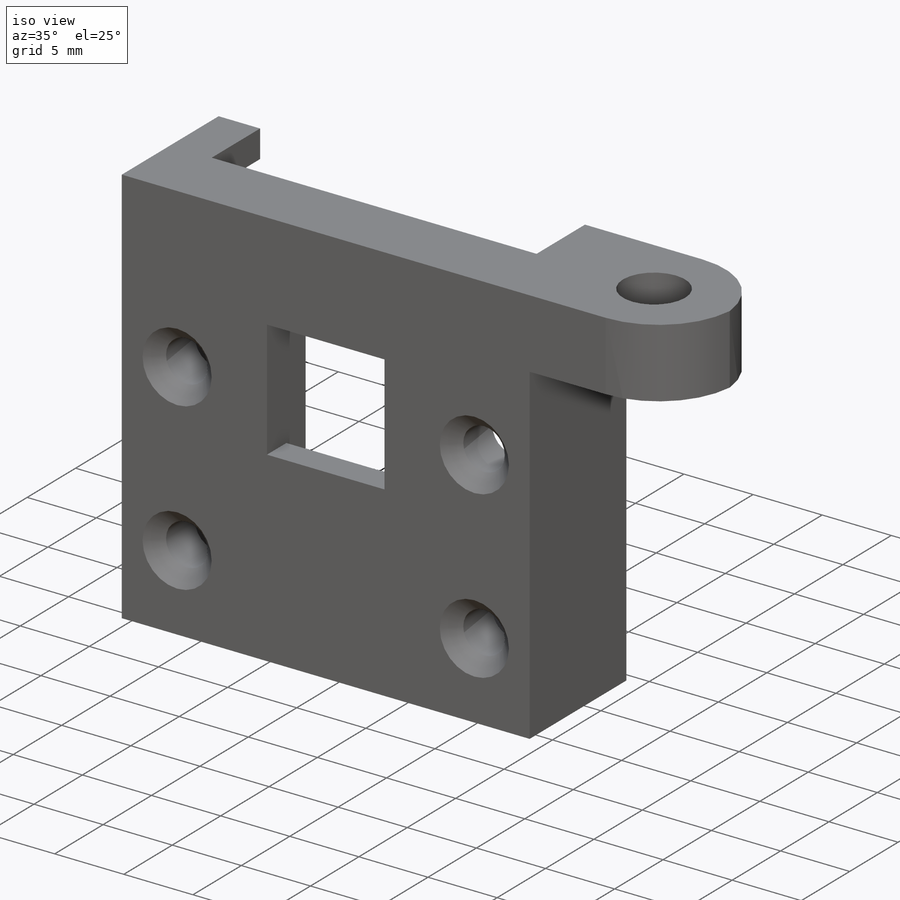
[diagram: iso view]
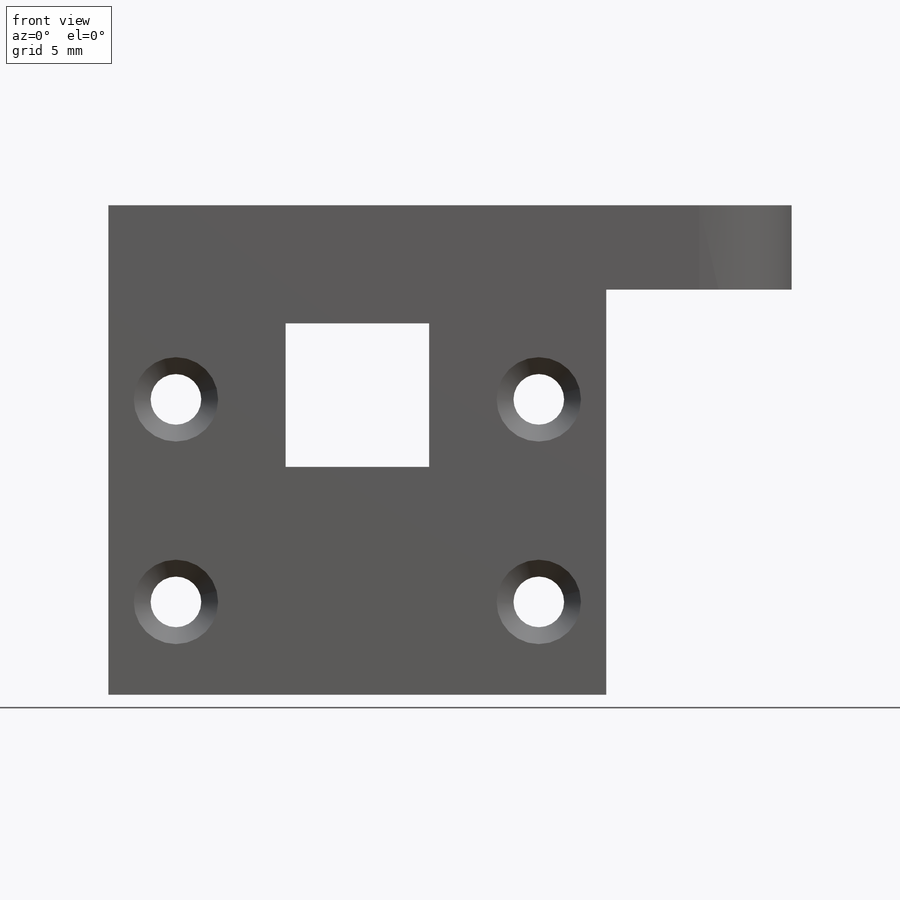
[diagram: front view]
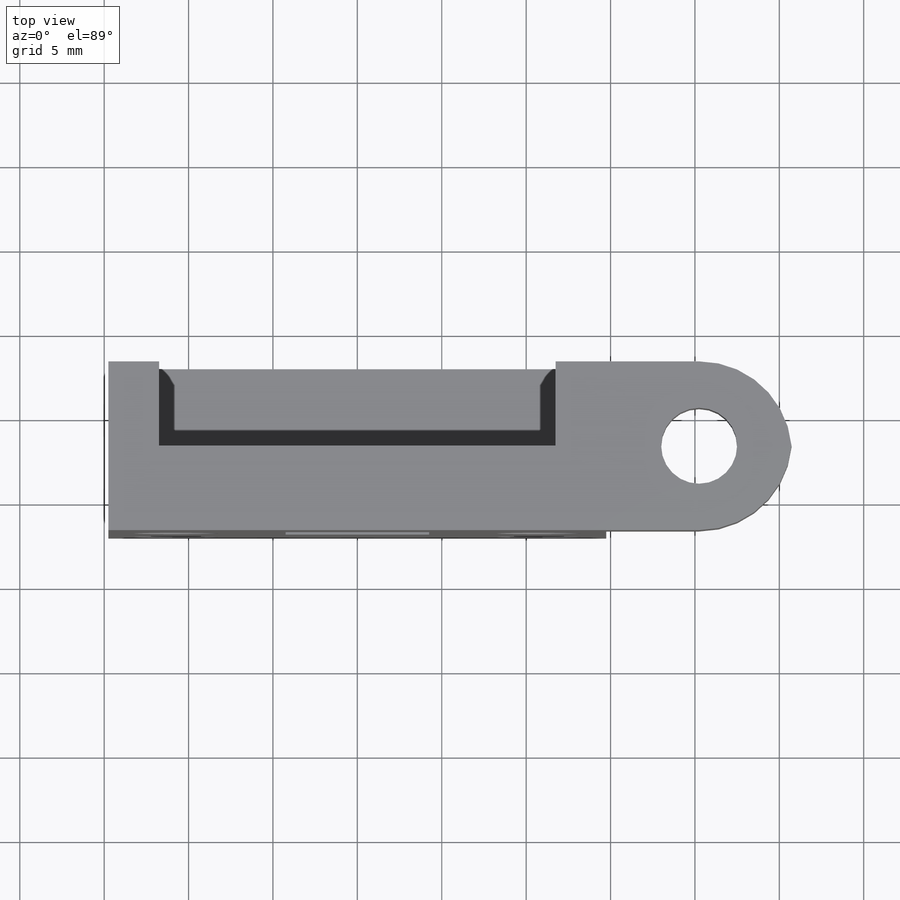
[diagram: top view]
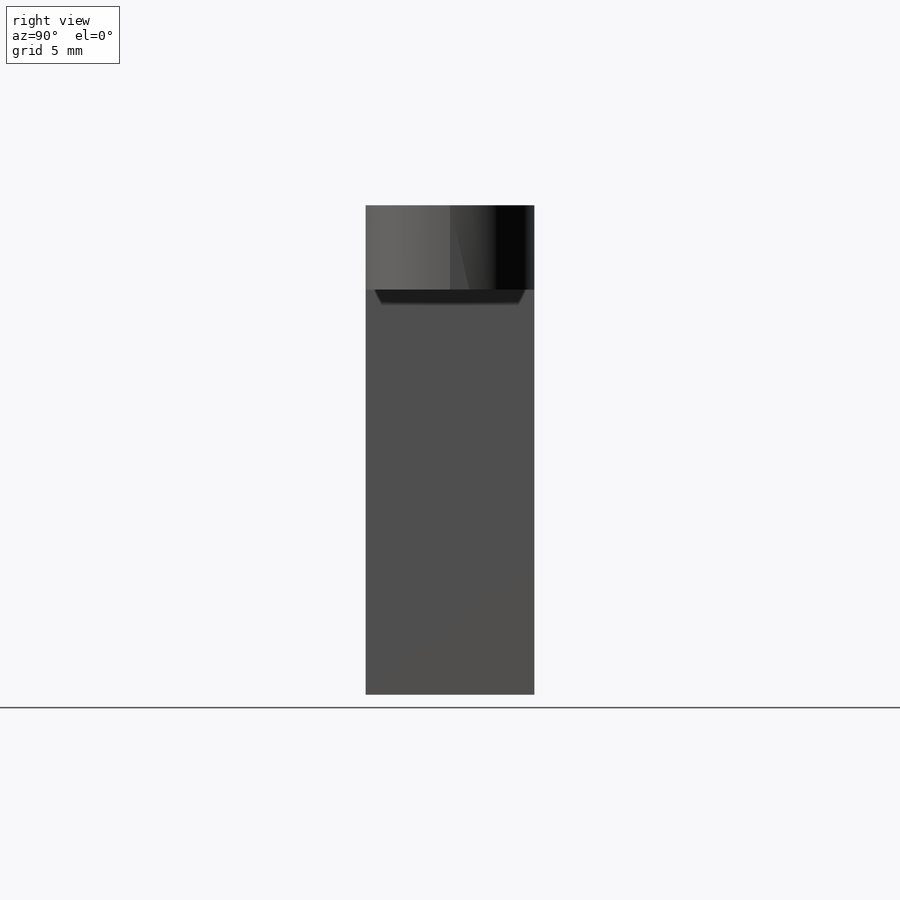
[diagram: right view]
SOLIDWORKS PART (.sldprt)
format: sldprt  version: not decoded by parser v0  size: 273,920 bytes
history: native  units: mm
features: sketch x5, plane x3, extrude x3, cut_extrude x2, material x1, fillet x1, chamfer x1 (+13 scaffold rows collapsed)
feature tree (29):
  scaffold x13  (default folders/planes/origin — collapsed)
  material  "Matériau <non spécifié>"
  plane  "Plan de face"
  plane  "Plan de dessus"
  plane  "Plan de droite"
  sketch  "Esquisse1"  dims[c1.D9=3.0mm c1.D10=3.0mm c1.D11=3.0mm c1.D12=3.0mm c1.D1=29.5mm c1.D2=29.0mm c1.D3=14.75mm c1.D4=14.5mm c1.D5=8.5mm c1.D6=8.5mm c1.D7=7.0mm c1.D8=4.25mm c1.D13=2.0mm c1.D14=~32.440752mm c2.D13=4.0mm c2.D14=4.0mm c2.D15=5.5mm c2.D16=12.0mm c2.D17=5.0mm c2.D18=11.0mm]
  extrude  "Extrusion1"  Depth=2mm
  sketch  "Esquisse2"  dims[D1=2.0mm D2=2.0mm D3=2.0mm D4=2.0mm]
  extrude  "Extrusion2"  Depth=8mm
  sketch  "Esquisse3"  dims[c1.D6=1.5mm c1.D1=8.5mm c1.D2=1.5mm c1.D3=3.0mm c1.D4=7.0mm c1.D5=3.0mm c2.D6=12.0mm]
  extrude  "Extrusion3"  Depth=2mm
  sketch  "Esquisse4"  dims[c1.D1=3.0mm c1.D2=14.0mm c1.D3=11.75mm c1.D4=11.75mm c2.D3=5.0mm]
  cut_extrude  "Extrusion4"  [1 undecoded]
  sketch  "Esquisse5"  dims[D3=4.5mm D1=5.0mm D2=5.5mm]
  cut_extrude  "Extrusion5"  [1 undecoded]
  fillet  "Congé1"  Radius=5.5mm
  chamfer  "Chanfrein1"  Distance=1mm Angle=45deg
decode coverage: 10 of 12 modeling features carry decoded parameters
note: ~ marks probable driven/reference dimensions
note: 2 parameter values undecoded
note: suppression state not decoded; provenance and decode notes live in map.json
